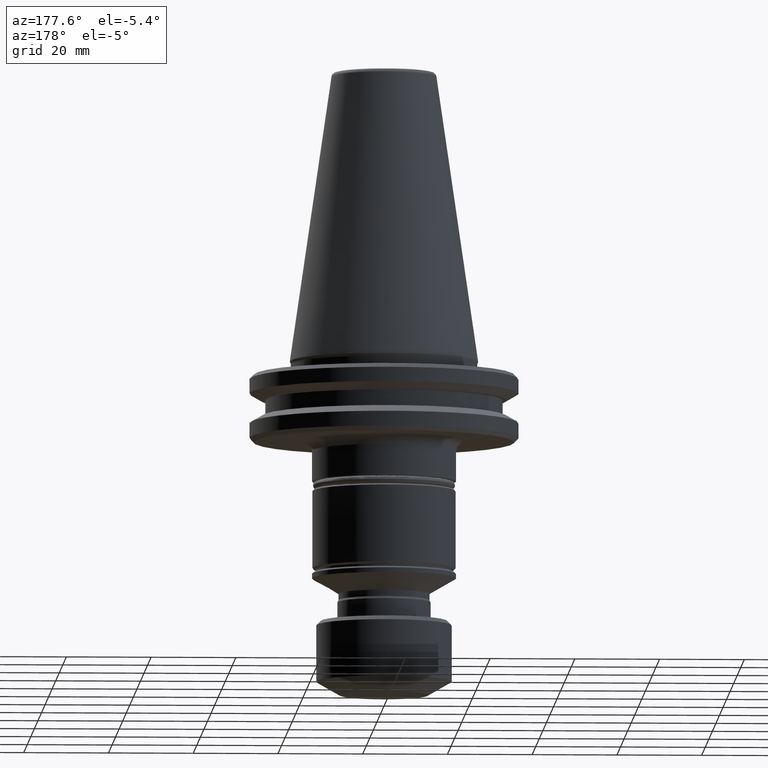
[diagram: clean part render]
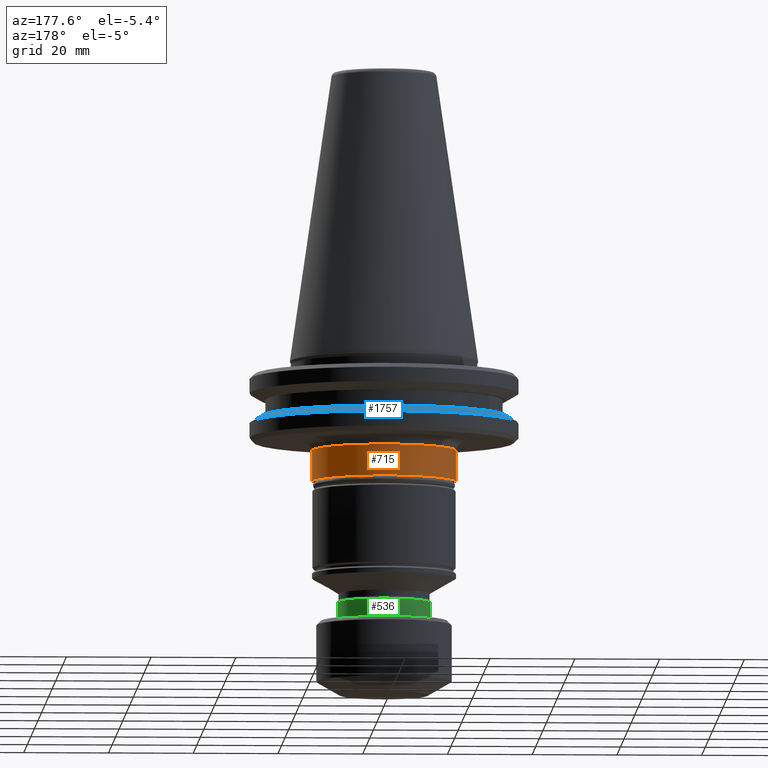
[diagram: same view with three faces highlighted in distinct colors, each labeled with its STEP entity id]
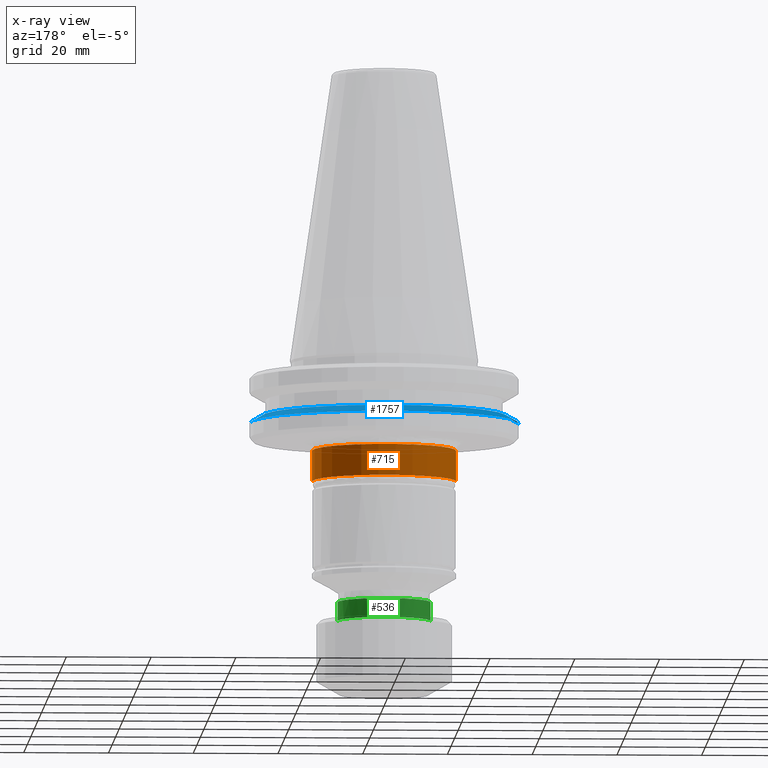
[diagram: x-ray of the same camera — body ghosted, the three highlighted faces saturated]
A machine part, auxiliary view with three faces highlighted in distinct colors.
The next image is the same camera in x-ray (body ghosted, the three faces saturated) — at least one of them is partly hidden behind the body in this view.
Their STEP definitions:

[orange] entity #715 — the highlighted cylindrical surface (partial cylindrical patch) has radius 17 mm, axis along (0, 0, 1).
#8 = DIRECTION ( 'NONE',  ( 0.0000000000000000000, 0.0000000000000000000, 1.000000000000000000 ) ) ;
#37 = AXIS2_PLACEMENT_3D ( 'NONE', #857, #877, #859 ) ;
#212 = LINE ( 'NONE', #2081, #1131 ) ;
#259 = EDGE_LOOP ( 'NONE', ( #1701, #431, #1926, #307 ) ) ;
#282 = CARTESIAN_POINT ( 'NONE',  ( 17.00000000000000000, 0.0000000000000000000, -28.40000000000001300 ) ) ;
#307 = ORIENTED_EDGE ( 'NONE', *, *, #1742, .F. ) ;
#377 = VECTOR ( 'NONE', #549, 1000.000000000000000 ) ;
#404 = FACE_OUTER_BOUND ( 'NONE', #259, .T. ) ;
#412 = CARTESIAN_POINT ( 'NONE',  ( -17.00000000000000000, 2.081899558550500300E-015, -28.40000000000001300 ) ) ;
#417 = VERTEX_POINT ( 'NONE', #1181 ) ;
#431 = ORIENTED_EDGE ( 'NONE', *, *, #997, .T. ) ;
#432 = CIRCLE ( 'NONE', #794, 17.00000000000000000 ) ;
#549 = DIRECTION ( 'NONE',  ( 0.0000000000000000000, 0.0000000000000000000, 1.000000000000000000 ) ) ;
#565 = DIRECTION ( 'NONE',  ( -1.000000000000000000, 0.0000000000000000000, 0.0000000000000000000 ) ) ;
#568 = DIRECTION ( 'NONE',  ( 0.0000000000000000000, 0.0000000000000000000, -1.000000000000000000 ) ) ;
#572 = CARTESIAN_POINT ( 'NONE',  ( 0.0000000000000000000, 0.0000000000000000000, -21.10000000000000900 ) ) ;
#576 = CARTESIAN_POINT ( 'NONE',  ( -17.00000000000000000, 2.081899558550500300E-015, 0.0000000000000000000 ) ) ;
#627 = DIRECTION ( 'NONE',  ( 1.000000000000000000, 0.0000000000000000000, 0.0000000000000000000 ) ) ;
#636 = CARTESIAN_POINT ( 'NONE',  ( 0.0000000000000000000, 0.0000000000000000000, -28.40000000000001300 ) ) ;
#711 = CARTESIAN_POINT ( 'NONE',  ( 17.00000000000000000, 0.0000000000000000000, -21.10000000000000900 ) ) ;
#715 = ADVANCED_FACE ( 'NONE', ( #404 ), #1700, .T. ) ;
#794 = AXIS2_PLACEMENT_3D ( 'NONE', #572, #568, #565 ) ;
#845 = LINE ( 'NONE', #576, #377 ) ;
#857 = CARTESIAN_POINT ( 'NONE',  ( 0.0000000000000000000, 0.0000000000000000000, 0.0000000000000000000 ) ) ;
#859 = DIRECTION ( 'NONE',  ( 1.000000000000000000, 0.0000000000000000000, 0.0000000000000000000 ) ) ;
#877 = DIRECTION ( 'NONE',  ( 0.0000000000000000000, 0.0000000000000000000, 1.000000000000000000 ) ) ;
#940 = AXIS2_PLACEMENT_3D ( 'NONE', #636, #1609, #627 ) ;
#951 = EDGE_CURVE ( 'NONE', #417, #1743, #432, .T. ) ;
#997 = EDGE_CURVE ( 'NONE', #1137, #417, #845, .T. ) ;
#1131 = VECTOR ( 'NONE', #8, 1000.000000000000000 ) ;
#1137 = VERTEX_POINT ( 'NONE', #412 ) ;
#1181 = CARTESIAN_POINT ( 'NONE',  ( -17.00000000000000000, 2.081899558550500300E-015, -21.10000000000000900 ) ) ;
#1310 = VERTEX_POINT ( 'NONE', #282 ) ;
#1609 = DIRECTION ( 'NONE',  ( 0.0000000000000000000, 0.0000000000000000000, 1.000000000000000000 ) ) ;
#1700 = CYLINDRICAL_SURFACE ( 'NONE', #37, 17.00000000000000000 ) ;
#1701 = ORIENTED_EDGE ( 'NONE', *, *, #1858, .T. ) ;
#1742 = EDGE_CURVE ( 'NONE', #1310, #1743, #212, .T. ) ;
#1743 = VERTEX_POINT ( 'NONE', #711 ) ;
#1858 = EDGE_CURVE ( 'NONE', #1310, #1137, #2025, .T. ) ;
#1926 = ORIENTED_EDGE ( 'NONE', *, *, #951, .T. ) ;
#2025 = CIRCLE ( 'NONE', #940, 17.00000000000000000 ) ;
#2081 = CARTESIAN_POINT ( 'NONE',  ( 17.00000000000000000, 0.0000000000000000000, 0.0000000000000000000 ) ) ;

[blue] entity #1757 — the highlighted conical surface has half-angle 60 deg.
#25 = DIRECTION ( 'NONE',  ( 1.000000000000000000, 0.0000000000000000000, 0.0000000000000000000 ) ) ;
#26 = DIRECTION ( 'NONE',  ( -0.0000000000000000000, -0.0000000000000000000, 1.000000000000000000 ) ) ;
#28 = CARTESIAN_POINT ( 'NONE',  ( 0.0000000000000000000, 0.0000000000000000000, -13.00000000000001100 ) ) ;
#42 = CONICAL_SURFACE ( 'NONE', #1569, 31.75000000000016700, 1.047197551196595900 ) ;
#45 = DIRECTION ( 'NONE',  ( 1.000000000000000000, 0.0000000000000000000, 0.0000000000000000000 ) ) ;
#49 = DIRECTION ( 'NONE',  ( -0.0000000000000000000, -0.0000000000000000000, 1.000000000000000000 ) ) ;
#53 = CARTESIAN_POINT ( 'NONE',  ( 0.0000000000000000000, 0.0000000000000000000, -14.62183664205635100 ) ) ;
#70 = VERTEX_POINT ( 'NONE', #1892 ) ;
#94 = FACE_OUTER_BOUND ( 'NONE', #1229, .T. ) ;
#102 = EDGE_CURVE ( 'NONE', #635, #1509, #2078, .T. ) ;
#244 = ORIENTED_EDGE ( 'NONE', *, *, #1436, .T. ) ;
#245 = VERTEX_POINT ( 'NONE', #1401 ) ;
#356 = CARTESIAN_POINT ( 'NONE',  ( 0.0000000000000000000, 0.0000000000000000000, -14.62183664205635100 ) ) ;
#442 = VECTOR ( 'NONE', #1694, 1000.000000000000000 ) ;
#635 = VERTEX_POINT ( 'NONE', #941 ) ;
#644 = CIRCLE ( 'NONE', #1581, 28.94089653438170000 ) ;
#702 = CIRCLE ( 'NONE', #1387, 31.75000000000016700 ) ;
#941 = CARTESIAN_POINT ( 'NONE',  ( 28.94089653438170000, 3.716245608910697900E-015, -13.00000000000001100 ) ) ;
#984 = DIRECTION ( 'NONE',  ( -1.000000000000000000, 0.0000000000000000000, 0.0000000000000000000 ) ) ;
#999 = CARTESIAN_POINT ( 'NONE',  ( 31.75000000000016700, 0.0000000000000000000, -14.62183664205635100 ) ) ;
#1229 = EDGE_LOOP ( 'NONE', ( #1321, #1846, #244, #1553 ) ) ;
#1290 = LINE ( 'NONE', #1848, #1696 ) ;
#1321 = ORIENTED_EDGE ( 'NONE', *, *, #1449, .F. ) ;
#1387 = AXIS2_PLACEMENT_3D ( 'NONE', #53, #49, #45 ) ;
#1401 = CARTESIAN_POINT ( 'NONE',  ( -28.94089653438170000, 0.0000000000000000000, -13.00000000000001100 ) ) ;
#1436 = EDGE_CURVE ( 'NONE', #1509, #70, #702, .T. ) ;
#1449 = EDGE_CURVE ( 'NONE', #635, #245, #644, .T. ) ;
#1509 = VERTEX_POINT ( 'NONE', #999 ) ;
#1553 = ORIENTED_EDGE ( 'NONE', *, *, #1844, .F. ) ;
#1569 = AXIS2_PLACEMENT_3D ( 'NONE', #356, #1638, #984 ) ;
#1581 = AXIS2_PLACEMENT_3D ( 'NONE', #28, #26, #25 ) ;
#1593 = CARTESIAN_POINT ( 'NONE',  ( 31.75000000000016700, 3.888253587292867000E-015, -14.62183664205635100 ) ) ;
#1638 = DIRECTION ( 'NONE',  ( 0.0000000000000000000, 0.0000000000000000000, -1.000000000000000000 ) ) ;
#1694 = DIRECTION ( 'NONE',  ( 0.8660254037844377100, 1.060575238724905800E-016, -0.5000000000000016700 ) ) ;
#1696 = VECTOR ( 'NONE', #1794, 1000.000000000000000 ) ;
#1757 = ADVANCED_FACE ( 'NONE', ( #94 ), #42, .T. ) ;
#1794 = DIRECTION ( 'NONE',  ( -0.8660254037844377100, 0.0000000000000000000, -0.5000000000000016700 ) ) ;
#1844 = EDGE_CURVE ( 'NONE', #245, #70, #1290, .T. ) ;
#1846 = ORIENTED_EDGE ( 'NONE', *, *, #102, .T. ) ;
#1848 = CARTESIAN_POINT ( 'NONE',  ( -31.75000000000016700, 0.0000000000000000000, -14.62183664205635100 ) ) ;
#1892 = CARTESIAN_POINT ( 'NONE',  ( -31.75000000000016700, 3.888253587292867000E-015, -14.62183664205635100 ) ) ;
#2078 = LINE ( 'NONE', #1593, #442 ) ;

[green] entity #536 — the highlighted cylindrical surface (partial cylindrical patch) has radius 11 mm, axis along (0, 0, 1).
#11 = ORIENTED_EDGE ( 'NONE', *, *, #782, .F. ) ;
#156 = CARTESIAN_POINT ( 'NONE',  ( 11.00000000000000000, 0.0000000000000000000, -61.50000000000000000 ) ) ;
#262 = ORIENTED_EDGE ( 'NONE', *, *, #1997, .T. ) ;
#272 = CARTESIAN_POINT ( 'NONE',  ( -11.00000000000000200, 1.347111479062088800E-015, -57.04456591256259700 ) ) ;
#313 = VECTOR ( 'NONE', #1038, 1000.000000000000000 ) ;
#434 = VERTEX_POINT ( 'NONE', #1156 ) ;
#446 = DIRECTION ( 'NONE',  ( -0.0000000000000000000, -0.0000000000000000000, 1.000000000000000000 ) ) ;
#495 = VERTEX_POINT ( 'NONE', #1097 ) ;
#536 = ADVANCED_FACE ( 'NONE', ( #679 ), #1575, .T. ) ;
#561 = CARTESIAN_POINT ( 'NONE',  ( 11.00000000000000200, 0.0000000000000000000, -57.04456591256259700 ) ) ;
#631 = DIRECTION ( 'NONE',  ( -1.000000000000000000, 0.0000000000000000000, 0.0000000000000000000 ) ) ;
#668 = VECTOR ( 'NONE', #1464, 1000.000000000000000 ) ;
#679 = FACE_OUTER_BOUND ( 'NONE', #1577, .T. ) ;
#762 = ORIENTED_EDGE ( 'NONE', *, *, #1780, .F. ) ;
#780 = DIRECTION ( 'NONE',  ( -1.000000000000000000, -8.881784197001252300E-016, 0.0000000000000000000 ) ) ;
#781 = DIRECTION ( 'NONE',  ( -0.0000000000000000000, -0.0000000000000000000, 1.000000000000000000 ) ) ;
#782 = EDGE_CURVE ( 'NONE', #495, #1340, #1226, .T. ) ;
#784 = CARTESIAN_POINT ( 'NONE',  ( 0.0000000000000000000, 0.0000000000000000000, -57.04456591256259700 ) ) ;
#790 = LINE ( 'NONE', #1121, #313 ) ;
#815 = ORIENTED_EDGE ( 'NONE', *, *, #2068, .T. ) ;
#910 = CARTESIAN_POINT ( 'NONE',  ( 0.0000000000000000000, 0.0000000000000000000, -57.04456591256259700 ) ) ;
#974 = VERTEX_POINT ( 'NONE', #561 ) ;
#1038 = DIRECTION ( 'NONE',  ( 0.0000000000000000000, 0.0000000000000000000, 1.000000000000000000 ) ) ;
#1044 = DIRECTION ( 'NONE',  ( 0.0000000000000000000, 0.0000000000000000000, 1.000000000000000000 ) ) ;
#1053 = CARTESIAN_POINT ( 'NONE',  ( 0.0000000000000000000, 0.0000000000000000000, 0.0000000000000000000 ) ) ;
#1056 = DIRECTION ( 'NONE',  ( 1.000000000000000000, 0.0000000000000000000, 0.0000000000000000000 ) ) ;
#1058 = DIRECTION ( 'NONE',  ( 0.0000000000000000000, 0.0000000000000000000, 1.000000000000000000 ) ) ;
#1097 = CARTESIAN_POINT ( 'NONE',  ( 0.0000000000000000000, 11.00000000000000700, -57.04456591256259700 ) ) ;
#1121 = CARTESIAN_POINT ( 'NONE',  ( 11.00000000000000000, 0.0000000000000000000, 0.0000000000000000000 ) ) ;
#1156 = CARTESIAN_POINT ( 'NONE',  ( -11.00000000000000000, 1.347111479062088400E-015, -61.50000000000000000 ) ) ;
#1223 = CARTESIAN_POINT ( 'NONE',  ( -11.00000000000000000, 1.347111479062088400E-015, 0.0000000000000000000 ) ) ;
#1226 = CIRCLE ( 'NONE', #1263, 11.00000000000000400 ) ;
#1263 = AXIS2_PLACEMENT_3D ( 'NONE', #784, #781, #780 ) ;
#1268 = CARTESIAN_POINT ( 'NONE',  ( 0.0000000000000000000, 0.0000000000000000000, -61.50000000000000000 ) ) ;
#1340 = VERTEX_POINT ( 'NONE', #272 ) ;
#1363 = CIRCLE ( 'NONE', #1475, 11.00000000000000000 ) ;
#1386 = CIRCLE ( 'NONE', #1390, 11.00000000000000400 ) ;
#1390 = AXIS2_PLACEMENT_3D ( 'NONE', #910, #446, #631 ) ;
#1464 = DIRECTION ( 'NONE',  ( 0.0000000000000000000, 0.0000000000000000000, 1.000000000000000000 ) ) ;
#1475 = AXIS2_PLACEMENT_3D ( 'NONE', #1268, #1058, #1775 ) ;
#1575 = CYLINDRICAL_SURFACE ( 'NONE', #1979, 11.00000000000000000 ) ;
#1577 = EDGE_LOOP ( 'NONE', ( #262, #815, #11, #762, #1866 ) ) ;
#1654 = VERTEX_POINT ( 'NONE', #156 ) ;
#1660 = EDGE_CURVE ( 'NONE', #1654, #974, #790, .T. ) ;
#1671 = LINE ( 'NONE', #1223, #668 ) ;
#1775 = DIRECTION ( 'NONE',  ( 1.000000000000000000, 0.0000000000000000000, 0.0000000000000000000 ) ) ;
#1780 = EDGE_CURVE ( 'NONE', #974, #495, #1386, .T. ) ;
#1866 = ORIENTED_EDGE ( 'NONE', *, *, #1660, .F. ) ;
#1979 = AXIS2_PLACEMENT_3D ( 'NONE', #1053, #1044, #1056 ) ;
#1997 = EDGE_CURVE ( 'NONE', #1654, #434, #1363, .T. ) ;
#2068 = EDGE_CURVE ( 'NONE', #434, #1340, #1671, .T. ) ;